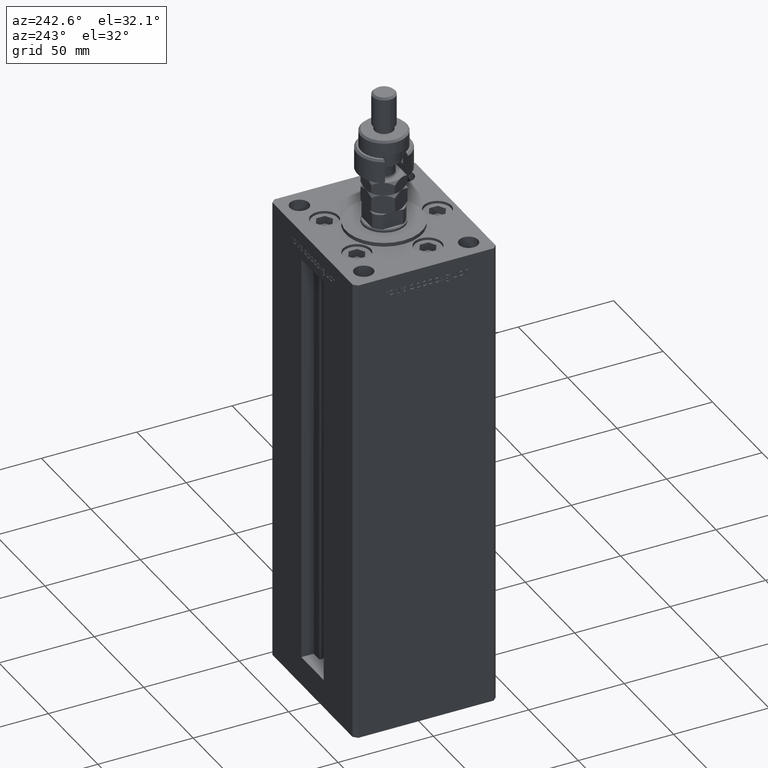
[diagram: clean part render]
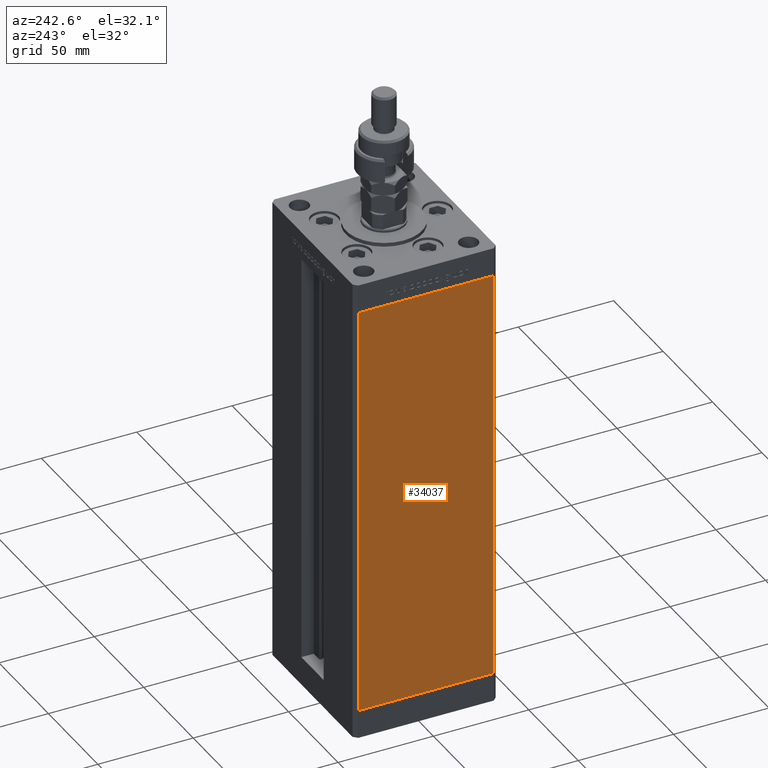
[diagram: same view with one face highlighted and labeled with its STEP entity id]
A machine part, auxiliary view. The second image highlights one B-rep face of the part: STEP entity #34037.
In plain terms, the highlighted planar face has unit normal (1, 0, 0).
Its self-contained STEP definition (entity closure, byte-faithful):
#1519 = DIRECTION ( 'NONE',  ( 1.000000000000000000, 2.931927001650941360E-16, -0.000000000000000000 ) ) ;
#2434 = VERTEX_POINT ( 'NONE', #30563 ) ;
#2577 = DIRECTION ( 'NONE',  ( 2.931927001650941360E-16, -1.000000000000000000, 0.000000000000000000 ) ) ;
#2946 = EDGE_CURVE ( 'NONE', #15493, #51756, #12012, .T. ) ;
#5967 = DIRECTION ( 'NONE',  ( -2.931927001650941360E-16, 1.000000000000000000, 0.000000000000000000 ) ) ;
#9588 = FACE_OUTER_BOUND ( 'NONE', #41375, .T. ) ;
#9763 = VECTOR ( 'NONE', #2577, 1000.000000000000000 ) ;
#12012 = LINE ( 'NONE', #28986, #19193 ) ;
#12533 = VECTOR ( 'NONE', #49900, 1000.000000000000000 ) ;
#13150 = CARTESIAN_POINT ( 'NONE',  ( -42.49999999999998579, -35.50000000000000711, 218.5000000000000000 ) ) ;
#13600 = VECTOR ( 'NONE', #43480, 1000.000000000000000 ) ;
#14482 = EDGE_CURVE ( 'NONE', #51756, #2434, #23178, .T. ) ;
#15493 = VERTEX_POINT ( 'NONE', #36335 ) ;
#18501 = EDGE_CURVE ( 'NONE', #15493, #45993, #32930, .T. ) ;
#19193 = VECTOR ( 'NONE', #24802, 1000.000000000000000 ) ;
#19340 = ORIENTED_EDGE ( 'NONE', *, *, #2946, .T. ) ;
#19514 = EDGE_CURVE ( 'NONE', #45993, #2434, #30124, .T. ) ;
#19536 = ORIENTED_EDGE ( 'NONE', *, *, #19514, .F. ) ;
#23178 = LINE ( 'NONE', #53504, #9763 ) ;
#24802 = DIRECTION ( 'NONE',  ( -0.000000000000000000, -0.000000000000000000, -1.000000000000000000 ) ) ;
#26809 = AXIS2_PLACEMENT_3D ( 'NONE', #31587, #1519, #5967 ) ;
#27106 = PLANE ( 'NONE',  #26809 ) ;
#28986 = CARTESIAN_POINT ( 'NONE',  ( -42.50000000000000711, 35.50000000000001421, 218.5000000000000000 ) ) ;
#30124 = LINE ( 'NONE', #13150, #13600 ) ;
#30563 = CARTESIAN_POINT ( 'NONE',  ( -42.49999999999998579, -35.50000000000000711, 0.000000000000000000 ) ) ;
#31587 = CARTESIAN_POINT ( 'NONE',  ( -42.50000000000000711, 35.50000000000001421, 218.5000000000000000 ) ) ;
#32930 = LINE ( 'NONE', #54337, #12533 ) ;
#34037 = ADVANCED_FACE ( 'NONE', ( #9588 ), #27106, .F. ) ;
#36335 = CARTESIAN_POINT ( 'NONE',  ( -42.50000000000000711, 35.50000000000001421, 218.5000000000000000 ) ) ;
#37836 = CARTESIAN_POINT ( 'NONE',  ( -42.49999999999998579, -35.50000000000000711, 218.5000000000000000 ) ) ;
#40493 = ORIENTED_EDGE ( 'NONE', *, *, #14482, .T. ) ;
#41375 = EDGE_LOOP ( 'NONE', ( #40493, #19536, #43002, #19340 ) ) ;
#43002 = ORIENTED_EDGE ( 'NONE', *, *, #18501, .F. ) ;
#43480 = DIRECTION ( 'NONE',  ( -0.000000000000000000, -0.000000000000000000, -1.000000000000000000 ) ) ;
#45993 = VERTEX_POINT ( 'NONE', #37836 ) ;
#48962 = CARTESIAN_POINT ( 'NONE',  ( -42.50000000000000711, 35.50000000000001421, 0.000000000000000000 ) ) ;
#49900 = DIRECTION ( 'NONE',  ( 2.931927001650941360E-16, -1.000000000000000000, 0.000000000000000000 ) ) ;
#51756 = VERTEX_POINT ( 'NONE', #48962 ) ;
#53504 = CARTESIAN_POINT ( 'NONE',  ( -42.50000000000000711, 35.50000000000001421, 0.000000000000000000 ) ) ;
#54337 = CARTESIAN_POINT ( 'NONE',  ( -42.50000000000000711, 35.50000000000001421, 218.5000000000000000 ) ) ;